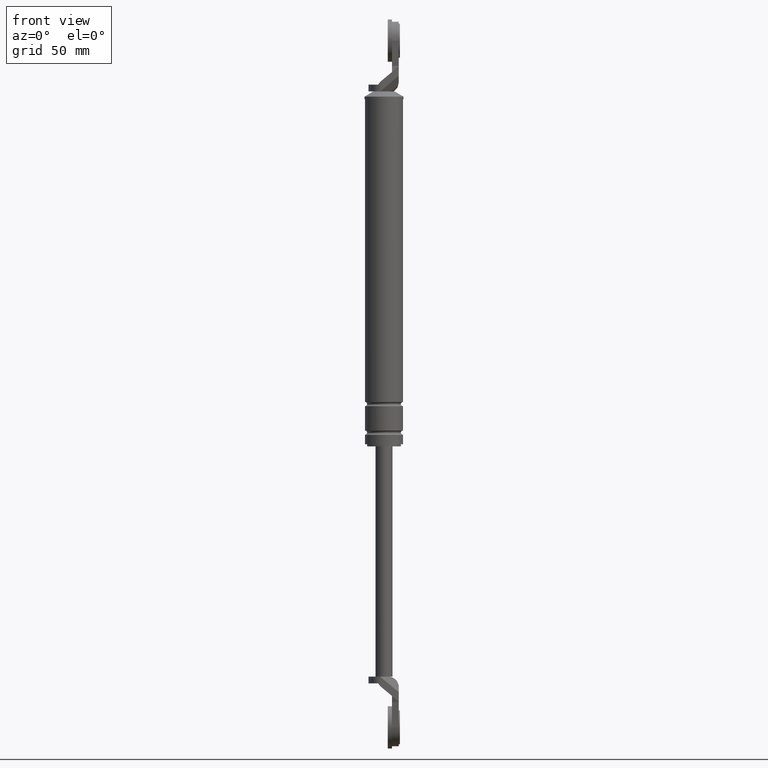
[diagram: clean part render]
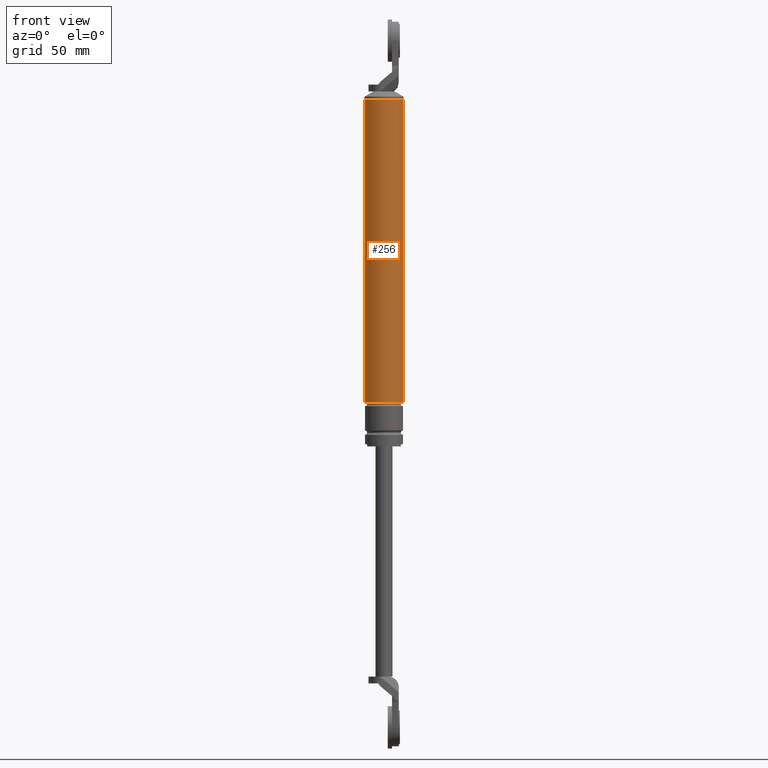
[diagram: same view with one face highlighted and labeled with its STEP entity id]
A machine part, front view. The second image highlights one B-rep face of the part: STEP entity #256.
In plain terms, the highlighted cylindrical surface (edge-blend (fillet) strip) has radius 9 mm, axis along (0, 0, 1).
Its self-contained STEP definition (entity closure, byte-faithful):
#256=ADVANCED_FACE('',(#815),#814,.T.);
#814=CYLINDRICAL_SURFACE('',#1563,9.00000000000E+000);
#815=FACE_OUTER_BOUND('',#1564,.T.);
#1560=CARTESIAN_POINT('',(0.00000000000E+000,3.58204186421E-014,0.00000000000E+000));
#1561=DIRECTION('',(-0.00000000000E+000,-0.00000000000E+000,1.00000000000E+000));
#1562=DIRECTION('',(1.00000000000E+000,0.00000000000E+000,0.00000000000E+000));
#1563=AXIS2_PLACEMENT_3D('',#1560,#1561,#1562);
#1564=EDGE_LOOP('',(#2004,#2005,#2006,#2007));
#2004=ORIENTED_EDGE('',*,*,#2274,.F.);
#2005=ORIENTED_EDGE('',*,*,#2281,.T.);
#2006=ORIENTED_EDGE('',*,*,#2215,.T.);
#2007=ORIENTED_EDGE('',*,*,#2282,.F.);
#2215=EDGE_CURVE('',#2743,#2744,#2745,.T.);
#2274=EDGE_CURVE('',#3099,#3098,#3132,.T.);
#2281=EDGE_CURVE('',#3099,#2743,#3174,.T.);
#2282=EDGE_CURVE('',#3098,#2744,#3180,.T.);
#2743=VERTEX_POINT('',#3920);
#2744=VERTEX_POINT('',#3921);
#2745=CIRCLE('',#3925,9.00000000000E+000);
#3098=VERTEX_POINT('',#4137);
#3099=VERTEX_POINT('',#4138);
#3132=CIRCLE('',#4166,9.00000000000E+000);
#3174=(BOUNDED_CURVE() B_SPLINE_CURVE(1,(#4179,#4180),.UNSPECIFIED.,.F.,.F.) B_SPLINE_CURVE_WITH_KNOTS((2,2),(6.12369870765E-002,9.38763013021E-001),.UNSPECIFIED.) CURVE() GEOMETRIC_REPRESENTATION_ITEM() RATIONAL_B_SPLINE_CURVE((1.00000000000E+000,1.00000000000E+000)) REPRESENTATION_ITEM('') );
#3180=(BOUNDED_CURVE() B_SPLINE_CURVE(1,(#4181,#4182),.UNSPECIFIED.,.F.,.F.) B_SPLINE_CURVE_WITH_KNOTS((2,2),(6.12369871402E-002,9.38763012860E-001),.UNSPECIFIED.) CURVE() GEOMETRIC_REPRESENTATION_ITEM() RATIONAL_B_SPLINE_CURVE((7.50000000000E-001,7.50000000000E-001)) REPRESENTATION_ITEM('') );
#3920=CARTESIAN_POINT('',(9.00000000000E+000,3.61192557345E-014,8.52999850000E+001));
#3921=CARTESIAN_POINT('',(-9.00000000000E+000,3.58204186421E-014,8.52999850000E+001));
#3922=CARTESIAN_POINT('',(0.00000000000E+000,3.58204186421E-014,8.52999850000E+001));
#3923=DIRECTION('',(-0.00000000000E+000,0.00000000000E+000,-1.00000000000E+000));
#3924=DIRECTION('',(-1.00000000000E+000,-1.22460635382E-016,0.00000000000E+000));
#3925=AXIS2_PLACEMENT_3D('',#3922,#3923,#3924);
#4137=CARTESIAN_POINT('',(-9.00000000000E+000,3.58204186421E-014,-5.80000150000E+001));
#4138=CARTESIAN_POINT('',(9.00000000000E+000,3.64153152077E-014,-5.80000150000E+001));
#4163=CARTESIAN_POINT('',(0.00000000000E+000,3.58204186421E-014,-5.80000150000E+001));
#4164=DIRECTION('',(-0.00000000000E+000,0.00000000000E+000,-1.00000000000E+000));
#4165=DIRECTION('',(-1.00000000000E+000,-1.22460635382E-016,0.00000000000E+000));
#4166=AXIS2_PLACEMENT_3D('',#4163,#4164,#4165);
#4179=CARTESIAN_POINT('',(9.00000000000E+000,3.58204186421E-014,-5.80000150104E+001));
#4180=CARTESIAN_POINT('',(9.00000000000E+000,3.58204186421E-014,8.52999850263E+001));
#4181=CARTESIAN_POINT('',(-9.00000000000E+000,3.52310773148E-014,-5.80000150000E+001));
#4182=CARTESIAN_POINT('',(-9.00000000000E+000,3.52310773148E-014,8.52999850000E+001));